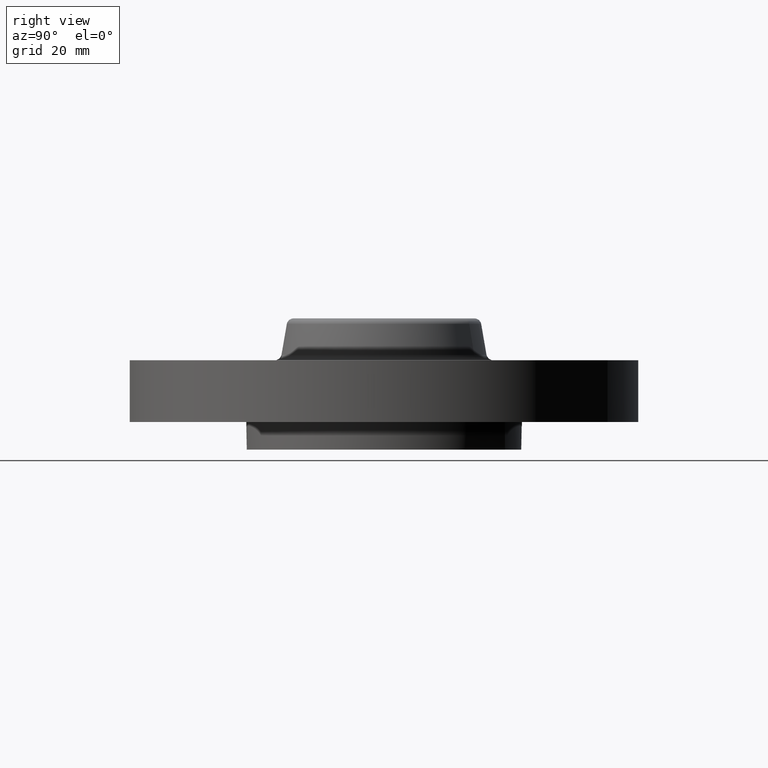
[diagram: clean part render]
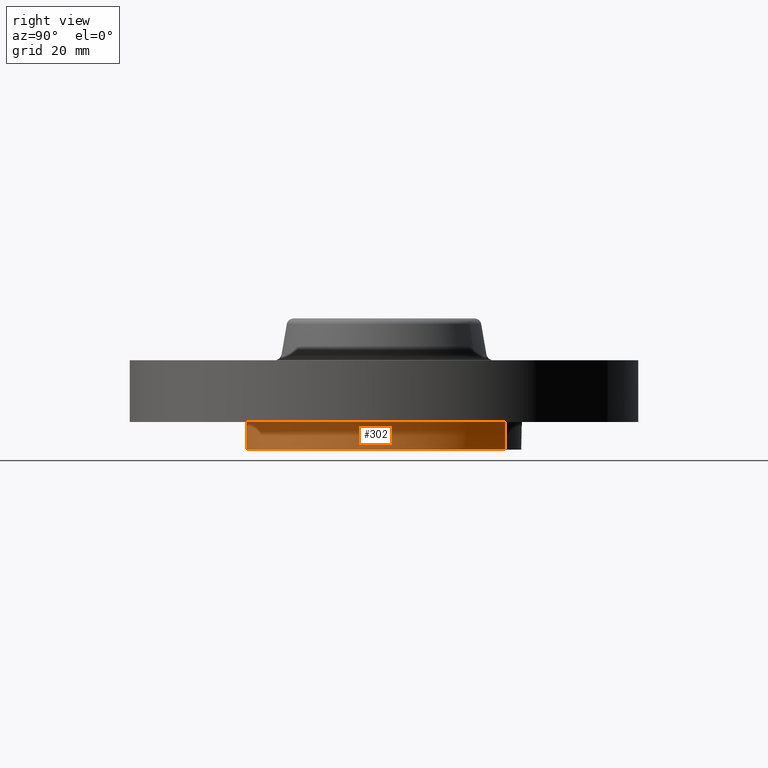
[diagram: same view with one face highlighted and labeled with its STEP entity id]
A machine part, right view. The second image highlights one B-rep face of the part: STEP entity #302.
In plain terms, the highlighted cylindrical surface (partial cylindrical patch) has radius 31.75 mm, axis along (0, 0, -1).
Its self-contained STEP definition (entity closure, byte-faithful):
#202=AXIS2_PLACEMENT_3D('Circle Axis2P3D',#200,#201,$) ;
#231=AXIS2_PLACEMENT_3D('Cylinder Axis2P3D',#228,#229,#230) ;
#277=AXIS2_PLACEMENT_3D('Circle Axis2P3D',#275,#276,$) ;
#284=AXIS2_PLACEMENT_3D('Circle Axis2P3D',#282,#283,$) ;
#291=AXIS2_PLACEMENT_3D('Circle Axis2P3D',#289,#290,$) ;
#195=CARTESIAN_POINT('Vertex',(-0.599281923258,-1.09697820237,-0.250000000001)) ;
#197=CARTESIAN_POINT('Vertex',(0.599281923258,1.09697820237,-0.250000000001)) ;
#200=CARTESIAN_POINT('Axis2P3D Location',(0.,0.,-0.250000000001)) ;
#228=CARTESIAN_POINT('Axis2P3D Location',(0.,0.,0.345000000001)) ;
#233=CARTESIAN_POINT('Line Origine',(-0.599281923258,-1.09697820237,-0.125)) ;
#237=CARTESIAN_POINT('Vertex',(-0.599281923258,-1.09697820237,1.39870617276E-016)) ;
#258=CARTESIAN_POINT('Vertex',(0.599281923258,1.09697820237,1.39870617276E-016)) ;
#261=CARTESIAN_POINT('Line Origine',(0.599281923258,1.09697820237,-0.125)) ;
#275=CARTESIAN_POINT('Axis2P3D Location',(0.,0.,1.39870617276E-016)) ;
#279=CARTESIAN_POINT('Vertex',(1.25000000001,-1.39870617276E-016,0.)) ;
#282=CARTESIAN_POINT('Axis2P3D Location',(0.,0.,1.39870617276E-016)) ;
#286=CARTESIAN_POINT('Vertex',(2.02112938519E-016,-1.25000000001,0.)) ;
#289=CARTESIAN_POINT('Axis2P3D Location',(0.,0.,1.39870617276E-016)) ;
#201=DIRECTION('Axis2P3D Direction',(0.,0.,-0.0393700787402)) ;
#229=DIRECTION('Axis2P3D Direction',(0.,0.,-0.0393700787402)) ;
#230=DIRECTION('Axis2P3D XDirection',(0.0188750212049,0.0345504945626,0.)) ;
#234=DIRECTION('Vector Direction',(0.,0.,-0.0393700787402)) ;
#262=DIRECTION('Vector Direction',(0.,0.,-0.0393700787402)) ;
#276=DIRECTION('Axis2P3D Direction',(0.,0.,-0.0393700787402)) ;
#283=DIRECTION('Axis2P3D Direction',(0.,0.,-0.0393700787402)) ;
#290=DIRECTION('Axis2P3D Direction',(0.,0.,-0.0393700787402)) ;
#235=VECTOR('Line Direction',#234,0.0393700787402) ;
#263=VECTOR('Line Direction',#262,0.0393700787402) ;
#295=ORIENTED_EDGE('',*,*,#204,.F.) ;
#296=ORIENTED_EDGE('',*,*,#265,.T.) ;
#297=ORIENTED_EDGE('',*,*,#281,.T.) ;
#298=ORIENTED_EDGE('',*,*,#288,.T.) ;
#299=ORIENTED_EDGE('',*,*,#293,.T.) ;
#300=ORIENTED_EDGE('',*,*,#239,.F.) ;
#302=ADVANCED_FACE('PartBody',(#301),#232,.T.) ;
#203=CIRCLE('generated circle',#202,1.25000000001) ;
#278=CIRCLE('generated circle',#277,1.25000000001) ;
#285=CIRCLE('generated circle',#284,1.25000000001) ;
#292=CIRCLE('generated circle',#291,1.25000000001) ;
#232=CYLINDRICAL_SURFACE('generated cylinder',#231,1.25000000001) ;
#204=EDGE_CURVE('',#198,#196,#203,.T.) ;
#239=EDGE_CURVE('',#196,#238,#236,.F.) ;
#265=EDGE_CURVE('',#198,#259,#264,.F.) ;
#281=EDGE_CURVE('',#259,#280,#278,.T.) ;
#288=EDGE_CURVE('',#280,#287,#285,.T.) ;
#293=EDGE_CURVE('',#287,#238,#292,.T.) ;
#294=EDGE_LOOP('',(#295,#296,#297,#298,#299,#300)) ;
#301=FACE_OUTER_BOUND('',#294,.T.) ;
#236=LINE('Line',#233,#235) ;
#264=LINE('Line',#261,#263) ;
#196=VERTEX_POINT('',#195) ;
#198=VERTEX_POINT('',#197) ;
#238=VERTEX_POINT('',#237) ;
#259=VERTEX_POINT('',#258) ;
#280=VERTEX_POINT('',#279) ;
#287=VERTEX_POINT('',#286) ;